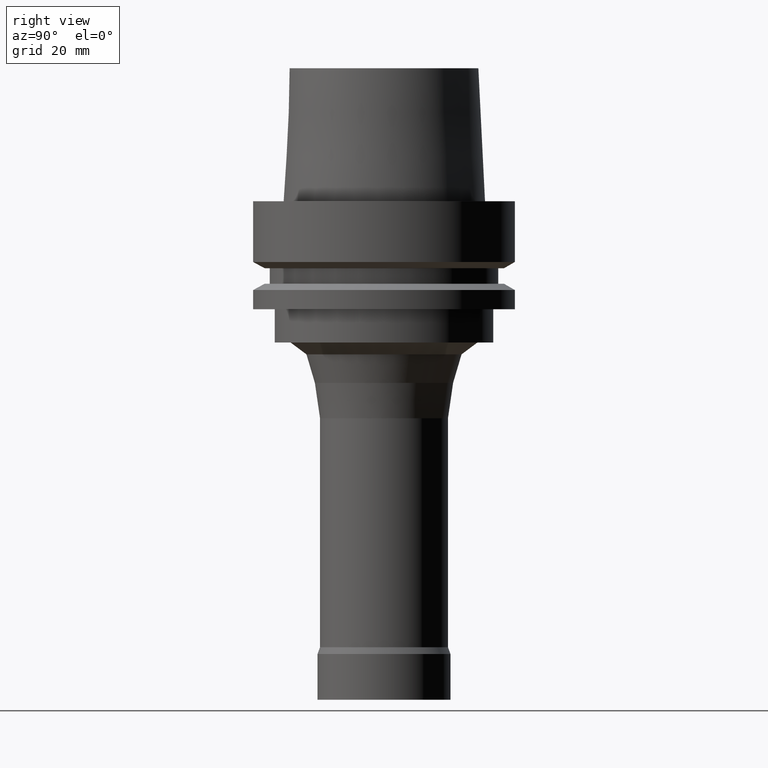
[diagram: clean part render]
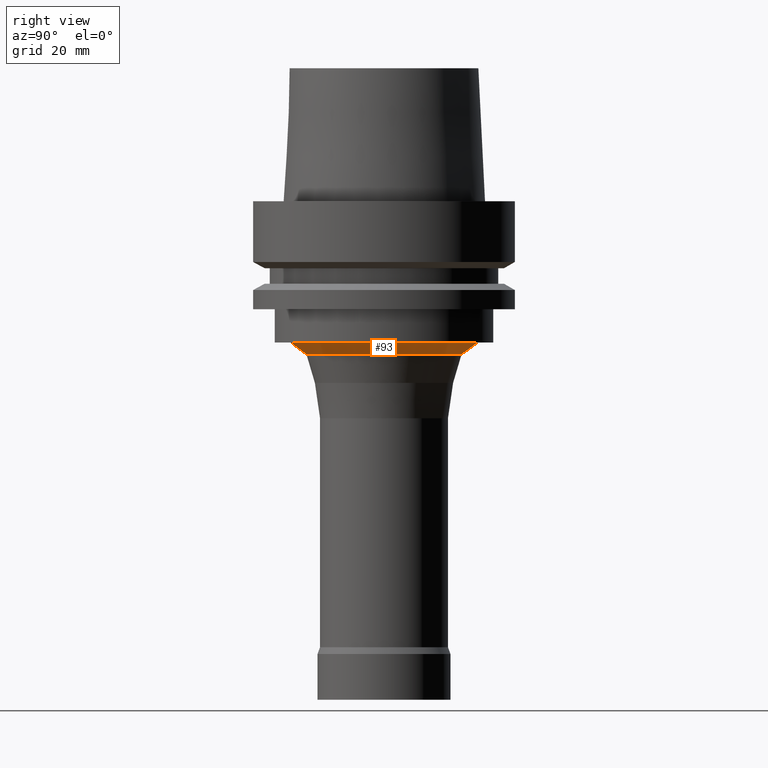
[diagram: same view with one face highlighted and labeled with its STEP entity id]
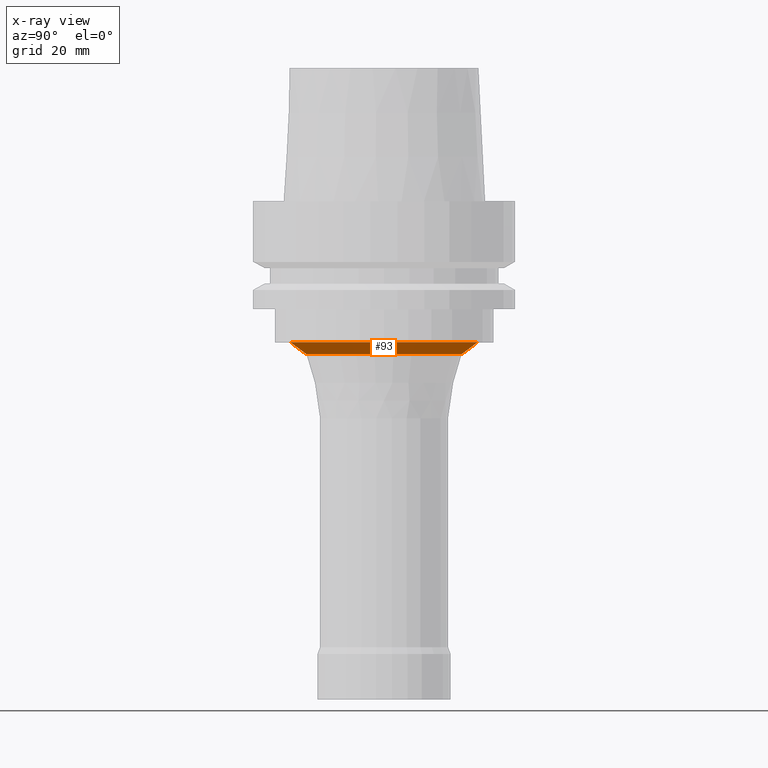
[diagram: x-ray of the same camera — body ghosted, the highlighted face saturated]
A machine part, right view. The second image highlights one B-rep face of the part: STEP entity #93.
The next image is the same camera in x-ray: the body ghosted, the highlighted face saturated — about 0% of this face is hidden behind the body in this view.
In plain terms, the highlighted conical surface has half-angle 53.24 deg.
Its self-contained STEP definition (entity closure, byte-faithful):
#93=ADVANCED_FACE('',(#148,#149),#150,.T.);
#148=FACE_BOUND('',#206,.T.);
#149=FACE_BOUND('',#207,.T.);
#150=CONICAL_SURFACE('',#208,20.5821561141815,0.929208271063027);
#206=EDGE_LOOP('',(#300));
#207=EDGE_LOOP('',(#301));
#208=AXIS2_PLACEMENT_3D('',#302,#303,#304);
#300=ORIENTED_EDGE('',*,*,#328,.F.);
#301=ORIENTED_EDGE('',*,*,#327,.T.);
#302=CARTESIAN_POINT('',(2.16962451470435E-015,4.33924902940869E-015,-35.432657256197));
#303=DIRECTION('',(-6.12323399573677E-017,-1.22464679914735E-016,1.0));
#304=DIRECTION('',(-1.23259516440783E-032,1.0,1.22464679914735E-016));
#327=EDGE_CURVE('',#363,#363,#364,.T.);
#328=EDGE_CURVE('',#365,#365,#366,.T.);
#363=VERTEX_POINT('',#401);
#364=CIRCLE('',#402,22.49999846);
#365=VERTEX_POINT('',#403);
#366=CIRCLE('',#404,18.6643137683629);
#401=CARTESIAN_POINT('',(2.0818995585505E-015,22.49999846,-34.0));
#402=AXIS2_PLACEMENT_3D('',#456,#457,#458);
#403=CARTESIAN_POINT('',(2.25734947085819E-015,18.6643137683629,-36.865314512394));
#404=AXIS2_PLACEMENT_3D('',#459,#460,#461);
#456=CARTESIAN_POINT('',(2.0818995585505E-015,4.163799117101E-015,-34.0));
#457=DIRECTION('',(6.12323399573677E-017,1.22464679914735E-016,-1.0));
#458=DIRECTION('',(-1.23259516440783E-032,1.0,1.22464679914735E-016));
#459=CARTESIAN_POINT('',(2.25734947085819E-015,4.51469894171638E-015,-36.865314512394));
#460=DIRECTION('',(6.12323399573677E-017,1.22464679914735E-016,-1.0));
#461=DIRECTION('',(-1.23259516440783E-032,1.0,1.22464679914735E-016));